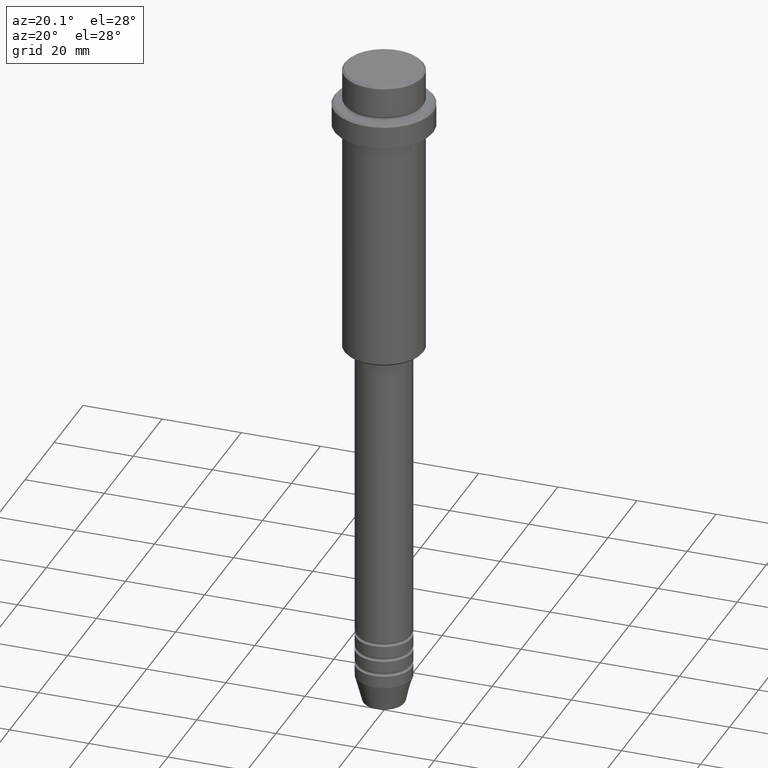
[diagram: clean part render]
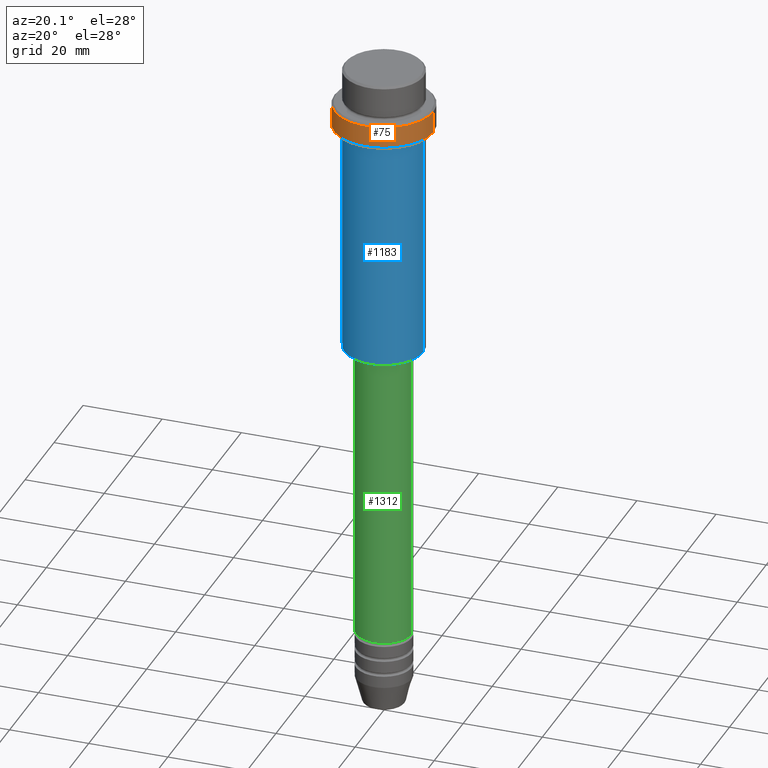
[diagram: same view with three faces highlighted in distinct colors, each labeled with its STEP entity id]
A machine part, auxiliary view with three faces highlighted in distinct colors.
Their STEP definitions:

[orange] entity #75 — the highlighted cylindrical surface (partial cylindrical patch) has radius 12.5 mm, axis along (-0, -0, 1).
#14 = EDGE_LOOP ( 'NONE', ( #770, #749, #1368, #358 ) ) ;
#56 = FACE_OUTER_BOUND ( 'NONE', #14, .T. ) ;
#75 = ADVANCED_FACE ( 'NONE', ( #56 ), #1330, .T. ) ;
#157 = DIRECTION ( 'NONE',  ( 1.000000000000000000, 0.000000000000000000, 0.000000000000000000 ) ) ;
#191 = AXIS2_PLACEMENT_3D ( 'NONE', #1060, #382, #1038 ) ;
#261 = VECTOR ( 'NONE', #755, 1000.000000000000000 ) ;
#324 = CARTESIAN_POINT ( 'NONE',  ( 12.50000000000000000, 0.000000000000000000, 0.000000000000000000 ) ) ;
#358 = ORIENTED_EDGE ( 'NONE', *, *, #607, .T. ) ;
#367 = DIRECTION ( 'NONE',  ( -0.000000000000000000, -0.000000000000000000, 1.000000000000000000 ) ) ;
#371 = VECTOR ( 'NONE', #574, 1000.000000000000000 ) ;
#382 = DIRECTION ( 'NONE',  ( 0.000000000000000000, 0.000000000000000000, -1.000000000000000000 ) ) ;
#452 = VERTEX_POINT ( 'NONE', #1287 ) ;
#461 = DIRECTION ( 'NONE',  ( -0.000000000000000000, -0.000000000000000000, 1.000000000000000000 ) ) ;
#466 = CIRCLE ( 'NONE', #191, 12.50000000000000000 ) ;
#472 = DIRECTION ( 'NONE',  ( 1.000000000000000000, 0.000000000000000000, 0.000000000000000000 ) ) ;
#487 = AXIS2_PLACEMENT_3D ( 'NONE', #676, #367, #157 ) ;
#525 = LINE ( 'NONE', #324, #261 ) ;
#565 = EDGE_CURVE ( 'NONE', #810, #452, #1379, .T. ) ;
#568 = CARTESIAN_POINT ( 'NONE',  ( 0.000000000000000000, 0.000000000000000000, -15.00000000000000000 ) ) ;
#574 = DIRECTION ( 'NONE',  ( -0.000000000000000000, -0.000000000000000000, 1.000000000000000000 ) ) ;
#607 = EDGE_CURVE ( 'NONE', #686, #1380, #466, .T. ) ;
#676 = CARTESIAN_POINT ( 'NONE',  ( 0.000000000000000000, 0.000000000000000000, 0.000000000000000000 ) ) ;
#686 = VERTEX_POINT ( 'NONE', #1383 ) ;
#749 = ORIENTED_EDGE ( 'NONE', *, *, #565, .T. ) ;
#755 = DIRECTION ( 'NONE',  ( -0.000000000000000000, -0.000000000000000000, 1.000000000000000000 ) ) ;
#768 = EDGE_CURVE ( 'NONE', #452, #686, #525, .T. ) ;
#770 = ORIENTED_EDGE ( 'NONE', *, *, #952, .F. ) ;
#810 = VERTEX_POINT ( 'NONE', #978 ) ;
#846 = AXIS2_PLACEMENT_3D ( 'NONE', #568, #461, #472 ) ;
#913 = CARTESIAN_POINT ( 'NONE',  ( -12.50000000000000000, 1.530808498934191521E-15, -9.500000000000019540 ) ) ;
#952 = EDGE_CURVE ( 'NONE', #810, #1380, #996, .T. ) ;
#978 = CARTESIAN_POINT ( 'NONE',  ( -12.50000000000000000, 1.530808498934191521E-15, -15.00000000000000000 ) ) ;
#996 = LINE ( 'NONE', #1231, #371 ) ;
#1038 = DIRECTION ( 'NONE',  ( 1.000000000000000000, 0.000000000000000000, 0.000000000000000000 ) ) ;
#1060 = CARTESIAN_POINT ( 'NONE',  ( 0.000000000000000000, 0.000000000000000000, -9.500000000000019540 ) ) ;
#1231 = CARTESIAN_POINT ( 'NONE',  ( -12.50000000000000000, 1.530808498934191521E-15, 0.000000000000000000 ) ) ;
#1287 = CARTESIAN_POINT ( 'NONE',  ( 12.50000000000000000, 0.000000000000000000, -15.00000000000000000 ) ) ;
#1330 = CYLINDRICAL_SURFACE ( 'NONE', #487, 12.50000000000000000 ) ;
#1368 = ORIENTED_EDGE ( 'NONE', *, *, #768, .T. ) ;
#1379 = CIRCLE ( 'NONE', #846, 12.50000000000000000 ) ;
#1380 = VERTEX_POINT ( 'NONE', #913 ) ;
#1383 = CARTESIAN_POINT ( 'NONE',  ( 12.50000000000000000, 0.000000000000000000, -9.500000000000019540 ) ) ;

[blue] entity #1183 — the highlighted cylindrical surface (partial cylindrical patch) has radius 10 mm, axis along (-0, -0, 1).
#5 = ORIENTED_EDGE ( 'NONE', *, *, #383, .F. ) ;
#62 = CARTESIAN_POINT ( 'NONE',  ( 0.000000000000000000, 0.000000000000000000, -74.50000000000000000 ) ) ;
#65 = VERTEX_POINT ( 'NONE', #1335 ) ;
#139 = DIRECTION ( 'NONE',  ( -0.000000000000000000, -0.000000000000000000, 1.000000000000000000 ) ) ;
#197 = ORIENTED_EDGE ( 'NONE', *, *, #1045, .F. ) ;
#215 = ORIENTED_EDGE ( 'NONE', *, *, #703, .T. ) ;
#247 = CARTESIAN_POINT ( 'NONE',  ( 9.999999999999998224, 0.000000000000000000, 0.000000000000000000 ) ) ;
#325 = DIRECTION ( 'NONE',  ( -0.000000000000000000, -0.000000000000000000, 1.000000000000000000 ) ) ;
#329 = CYLINDRICAL_SURFACE ( 'NONE', #653, 9.999999999999998224 ) ;
#332 = CIRCLE ( 'NONE', #1407, 9.999999999999998224 ) ;
#383 = EDGE_CURVE ( 'NONE', #65, #1163, #869, .T. ) ;
#403 = VECTOR ( 'NONE', #139, 1000.000000000000000 ) ;
#454 = DIRECTION ( 'NONE',  ( -0.000000000000000000, -0.000000000000000000, 1.000000000000000000 ) ) ;
#463 = LINE ( 'NONE', #247, #403 ) ;
#533 = AXIS2_PLACEMENT_3D ( 'NONE', #62, #923, #1365 ) ;
#557 = DIRECTION ( 'NONE',  ( -0.000000000000000000, -0.000000000000000000, 1.000000000000000000 ) ) ;
#579 = VECTOR ( 'NONE', #325, 1000.000000000000000 ) ;
#596 = VERTEX_POINT ( 'NONE', #1170 ) ;
#601 = CIRCLE ( 'NONE', #533, 9.999999999999998224 ) ;
#612 = CARTESIAN_POINT ( 'NONE',  ( -9.999999999999998224, 1.224646799147353059E-15, -16.00000000000000000 ) ) ;
#639 = ORIENTED_EDGE ( 'NONE', *, *, #1213, .T. ) ;
#653 = AXIS2_PLACEMENT_3D ( 'NONE', #1200, #557, #677 ) ;
#677 = DIRECTION ( 'NONE',  ( 1.000000000000000000, 0.000000000000000000, 0.000000000000000000 ) ) ;
#703 = EDGE_CURVE ( 'NONE', #65, #596, #601, .T. ) ;
#869 = LINE ( 'NONE', #1078, #579 ) ;
#882 = DIRECTION ( 'NONE',  ( 1.000000000000000000, 0.000000000000000000, 0.000000000000000000 ) ) ;
#923 = DIRECTION ( 'NONE',  ( -0.000000000000000000, -0.000000000000000000, 1.000000000000000000 ) ) ;
#982 = FACE_OUTER_BOUND ( 'NONE', #1067, .T. ) ;
#1045 = EDGE_CURVE ( 'NONE', #1163, #1343, #332, .T. ) ;
#1067 = EDGE_LOOP ( 'NONE', ( #5, #215, #639, #197 ) ) ;
#1078 = CARTESIAN_POINT ( 'NONE',  ( -9.999999999999998224, 1.224646799147353059E-15, 0.000000000000000000 ) ) ;
#1163 = VERTEX_POINT ( 'NONE', #612 ) ;
#1170 = CARTESIAN_POINT ( 'NONE',  ( 9.999999999999998224, 0.000000000000000000, -74.50000000000000000 ) ) ;
#1183 = ADVANCED_FACE ( 'NONE', ( #982 ), #329, .T. ) ;
#1200 = CARTESIAN_POINT ( 'NONE',  ( 0.000000000000000000, 0.000000000000000000, 0.000000000000000000 ) ) ;
#1213 = EDGE_CURVE ( 'NONE', #596, #1343, #463, .T. ) ;
#1261 = CARTESIAN_POINT ( 'NONE',  ( 0.000000000000000000, 0.000000000000000000, -16.00000000000000000 ) ) ;
#1335 = CARTESIAN_POINT ( 'NONE',  ( -9.999999999999998224, 1.224646799147353059E-15, -74.50000000000000000 ) ) ;
#1343 = VERTEX_POINT ( 'NONE', #1362 ) ;
#1362 = CARTESIAN_POINT ( 'NONE',  ( 9.999999999999998224, 0.000000000000000000, -16.00000000000000000 ) ) ;
#1365 = DIRECTION ( 'NONE',  ( -1.000000000000000000, 0.000000000000000000, 0.000000000000000000 ) ) ;
#1407 = AXIS2_PLACEMENT_3D ( 'NONE', #1261, #454, #882 ) ;

[green] entity #1312 — the highlighted cylindrical surface (edge-blend (fillet) strip) has radius 7 mm, axis along (-0, -0, 1).
#17 = VERTEX_POINT ( 'NONE', #266 ) ;
#57 = CYLINDRICAL_SURFACE ( 'NONE', #850, 7.000000000000000000 ) ;
#66 = LINE ( 'NONE', #1252, #781 ) ;
#101 = ORIENTED_EDGE ( 'NONE', *, *, #794, .F. ) ;
#146 = DIRECTION ( 'NONE',  ( 1.000000000000000000, 0.000000000000000000, 0.000000000000000000 ) ) ;
#194 = CIRCLE ( 'NONE', #263, 7.000000000000000000 ) ;
#263 = AXIS2_PLACEMENT_3D ( 'NONE', #1116, #481, #146 ) ;
#266 = CARTESIAN_POINT ( 'NONE',  ( -7.000000000000000000, 8.572527594031473190E-16, -150.9999999999999147 ) ) ;
#331 = VECTOR ( 'NONE', #638, 1000.000000000000000 ) ;
#387 = CARTESIAN_POINT ( 'NONE',  ( 0.000000000000000000, 0.000000000000000000, -150.9999999999999147 ) ) ;
#396 = CIRCLE ( 'NONE', #648, 7.000000000000000000 ) ;
#432 = EDGE_LOOP ( 'NONE', ( #101, #678, #739, #822 ) ) ;
#480 = CARTESIAN_POINT ( 'NONE',  ( 0.000000000000000000, 0.000000000000000000, 0.000000000000000000 ) ) ;
#481 = DIRECTION ( 'NONE',  ( -0.000000000000000000, -0.000000000000000000, 1.000000000000000000 ) ) ;
#547 = CARTESIAN_POINT ( 'NONE',  ( -7.000000000000000000, 8.572527594031473190E-16, 0.000000000000000000 ) ) ;
#608 = DIRECTION ( 'NONE',  ( -0.000000000000000000, -0.000000000000000000, 1.000000000000000000 ) ) ;
#621 = DIRECTION ( 'NONE',  ( 1.000000000000000000, 0.000000000000000000, 0.000000000000000000 ) ) ;
#637 = EDGE_CURVE ( 'NONE', #696, #1085, #66, .T. ) ;
#638 = DIRECTION ( 'NONE',  ( -0.000000000000000000, -0.000000000000000000, 1.000000000000000000 ) ) ;
#648 = AXIS2_PLACEMENT_3D ( 'NONE', #387, #608, #621 ) ;
#656 = LINE ( 'NONE', #547, #331 ) ;
#678 = ORIENTED_EDGE ( 'NONE', *, *, #712, .T. ) ;
#696 = VERTEX_POINT ( 'NONE', #735 ) ;
#711 = DIRECTION ( 'NONE',  ( -0.000000000000000000, -0.000000000000000000, 1.000000000000000000 ) ) ;
#712 = EDGE_CURVE ( 'NONE', #17, #696, #396, .T. ) ;
#735 = CARTESIAN_POINT ( 'NONE',  ( 7.000000000000000000, 0.000000000000000000, -150.9999999999999147 ) ) ;
#739 = ORIENTED_EDGE ( 'NONE', *, *, #637, .T. ) ;
#781 = VECTOR ( 'NONE', #711, 1000.000000000000000 ) ;
#794 = EDGE_CURVE ( 'NONE', #17, #1122, #656, .T. ) ;
#822 = ORIENTED_EDGE ( 'NONE', *, *, #979, .F. ) ;
#850 = AXIS2_PLACEMENT_3D ( 'NONE', #480, #1026, #1114 ) ;
#902 = FACE_OUTER_BOUND ( 'NONE', #432, .T. ) ;
#979 = EDGE_CURVE ( 'NONE', #1122, #1085, #194, .T. ) ;
#1026 = DIRECTION ( 'NONE',  ( -0.000000000000000000, -0.000000000000000000, 1.000000000000000000 ) ) ;
#1085 = VERTEX_POINT ( 'NONE', #1395 ) ;
#1114 = DIRECTION ( 'NONE',  ( 1.000000000000000000, 0.000000000000000000, 0.000000000000000000 ) ) ;
#1116 = CARTESIAN_POINT ( 'NONE',  ( 0.000000000000000000, 0.000000000000000000, -76.00000000000001421 ) ) ;
#1122 = VERTEX_POINT ( 'NONE', #1296 ) ;
#1252 = CARTESIAN_POINT ( 'NONE',  ( 7.000000000000000000, 0.000000000000000000, 0.000000000000000000 ) ) ;
#1296 = CARTESIAN_POINT ( 'NONE',  ( -7.000000000000000000, 8.572527594031473190E-16, -76.00000000000001421 ) ) ;
#1312 = ADVANCED_FACE ( 'NONE', ( #902 ), #57, .T. ) ;
#1395 = CARTESIAN_POINT ( 'NONE',  ( 7.000000000000000000, 0.000000000000000000, -76.00000000000001421 ) ) ;